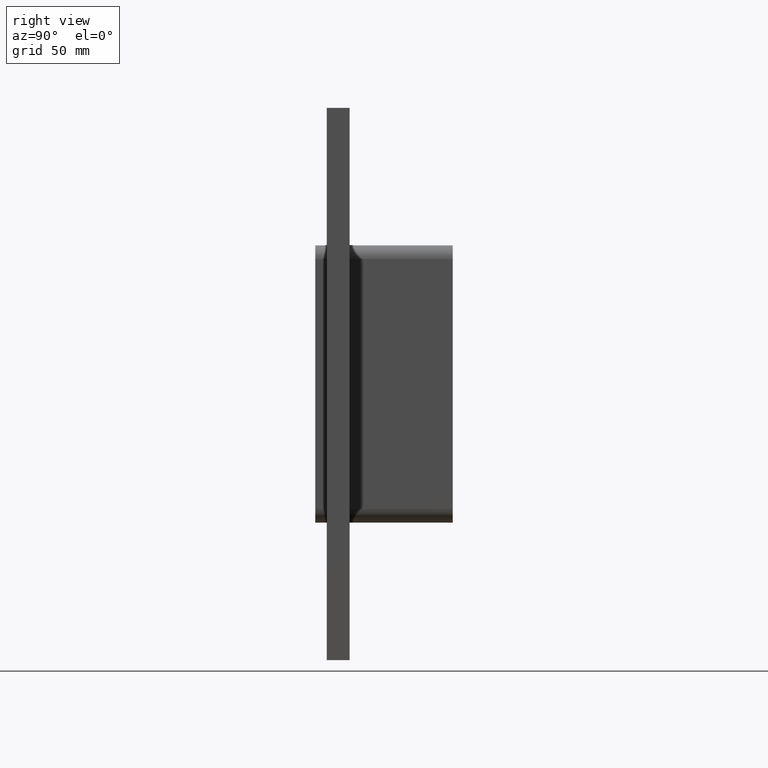
[diagram: clean part render]
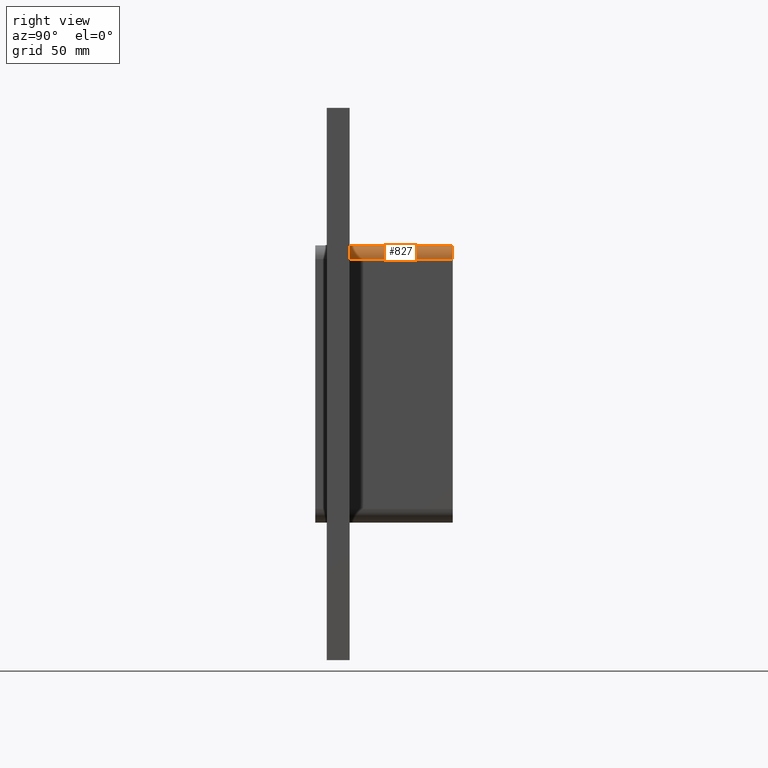
[diagram: same view with one face highlighted and labeled with its STEP entity id]
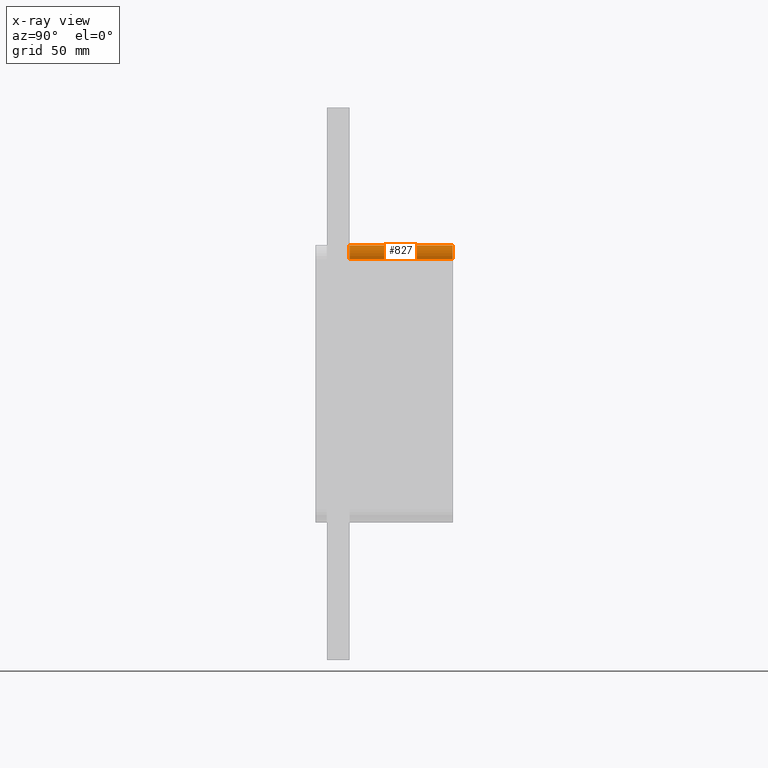
[diagram: x-ray of the same camera — body ghosted, the highlighted face saturated]
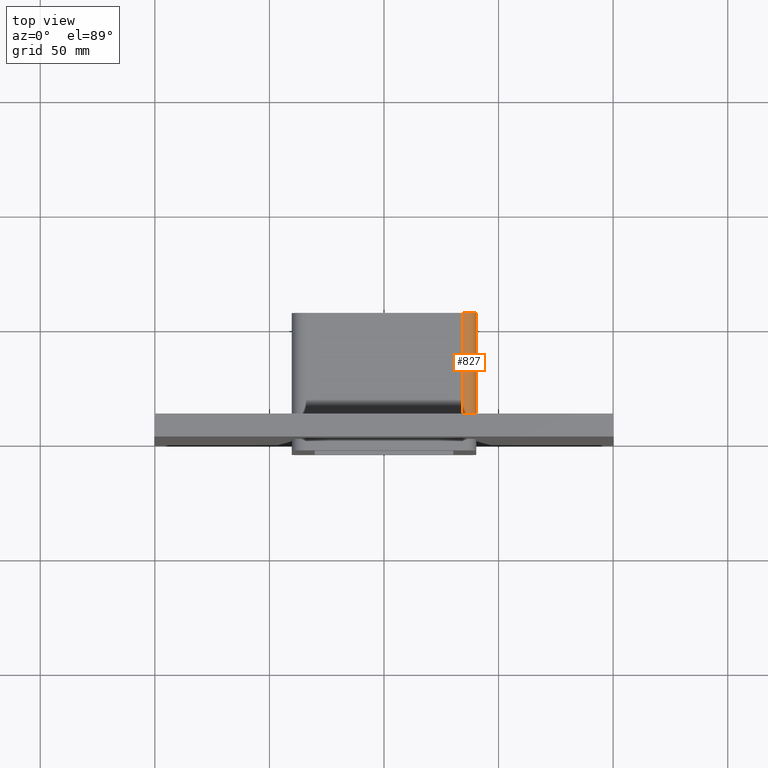
[diagram: same view with one face highlighted and labeled with its STEP entity id]
A machine part, right view. The second image highlights one B-rep face of the part: STEP entity #827.
The next image is the same camera in x-ray: the body ghosted, the highlighted face saturated — about 0% of this face is hidden behind the body in this view.
A second angle (top view) of the same face is appended — the face is thin or edge-on in the first view.
In plain terms, the highlighted cylindrical surface (edge-blend (fillet) strip) has radius 6 mm, axis along (0, 1, 0).
Its self-contained STEP definition (entity closure, byte-faithful):
#107=CARTESIAN_POINT('',(34.250000000000028,10.0,60.500000000000043));
#108=VERTEX_POINT('',#107);
#109=CARTESIAN_POINT('',(40.249999999999986,10.0,54.500000000000028));
#110=VERTEX_POINT('',#109);
#111=CARTESIAN_POINT('',(34.250000000000007,10.0,54.500000000000028));
#112=DIRECTION('',(0.0,1.0,0.0));
#113=DIRECTION('',(0.0,0.0,1.0));
#114=AXIS2_PLACEMENT_3D('',#111,#112,#113);
#115=CIRCLE('',#114,6.000000000000014);
#116=EDGE_CURVE('',#108,#110,#115,.T.);
#637=CARTESIAN_POINT('',(34.250000000000028,55.0,60.500000000000043));
#638=VERTEX_POINT('',#637);
#639=CARTESIAN_POINT('',(34.250000000000028,10.0,60.500000000000043));
#640=DIRECTION('',(0.0,1.0,0.0));
#641=VECTOR('',#640,45.0);
#642=LINE('',#639,#641);
#643=EDGE_CURVE('',#108,#638,#642,.T.);
#803=CARTESIAN_POINT('',(34.250000000000007,0.0,54.500000000000028));
#804=DIRECTION('',(0.0,1.0,0.0));
#805=DIRECTION('',(0.0,0.0,1.0));
#806=AXIS2_PLACEMENT_3D('',#803,#804,#805);
#807=CYLINDRICAL_SURFACE('',#806,6.000000000000014);
#808=ORIENTED_EDGE('',*,*,#116,.T.);
#809=CARTESIAN_POINT('',(40.249999999999986,55.0,54.500000000000028));
#810=VERTEX_POINT('',#809);
#811=CARTESIAN_POINT('',(40.249999999999986,55.0,54.500000000000028));
#812=DIRECTION('',(0.0,-1.0,0.0));
#813=VECTOR('',#812,45.0);
#814=LINE('',#811,#813);
#815=EDGE_CURVE('',#810,#110,#814,.T.);
#816=ORIENTED_EDGE('',*,*,#815,.F.);
#817=CARTESIAN_POINT('',(34.250000000000007,55.0,54.500000000000028));
#818=DIRECTION('',(0.0,1.0,0.0));
#819=DIRECTION('',(0.0,0.0,1.0));
#820=AXIS2_PLACEMENT_3D('',#817,#818,#819);
#821=CIRCLE('',#820,6.000000000000014);
#822=EDGE_CURVE('',#638,#810,#821,.T.);
#823=ORIENTED_EDGE('',*,*,#822,.F.);
#824=ORIENTED_EDGE('',*,*,#643,.F.);
#825=EDGE_LOOP('',(#808,#816,#823,#824));
#826=FACE_OUTER_BOUND('',#825,.T.);
#827=ADVANCED_FACE('',(#826),#807,.T.);